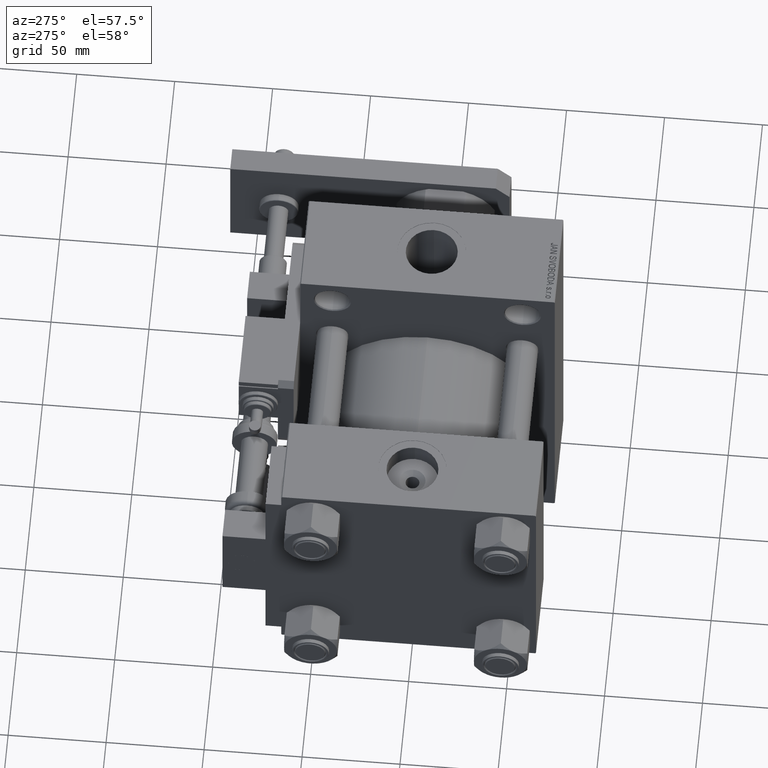
[diagram: clean part render]
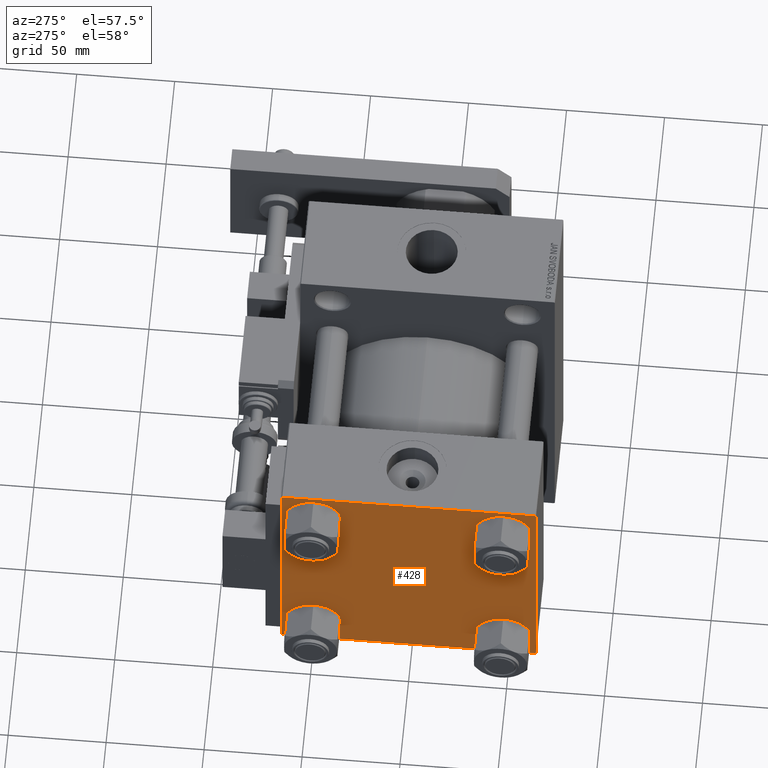
[diagram: same view with one face highlighted and labeled with its STEP entity id]
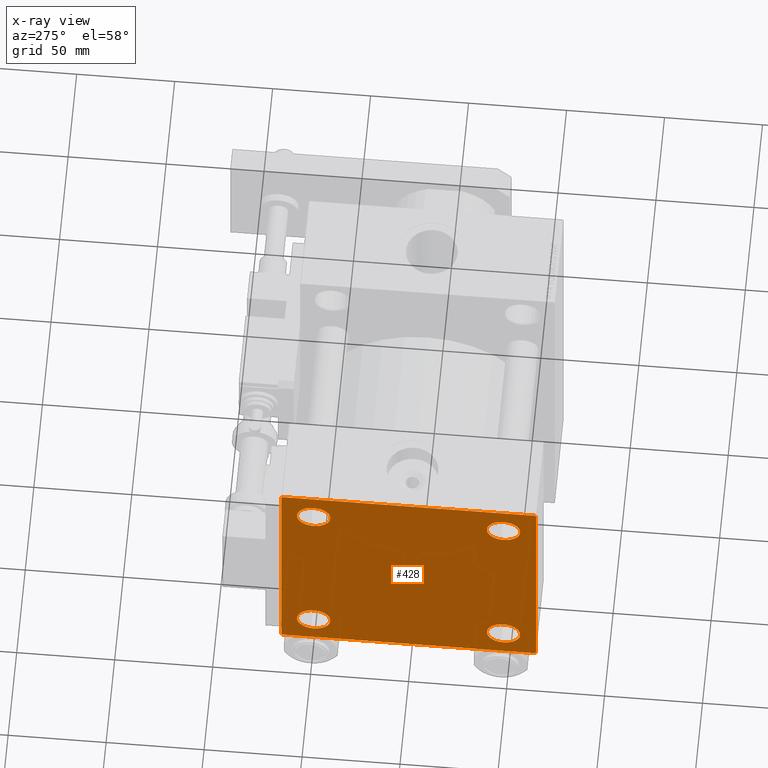
[diagram: x-ray of the same camera — body ghosted, the highlighted face saturated]
A machine part, auxiliary view. The second image highlights one B-rep face of the part: STEP entity #428.
The next image is the same camera in x-ray: the body ghosted, the highlighted face saturated — about 0% of this face is hidden behind the body in this view.
In plain terms, the highlighted planar face has unit normal (-1, 0, 0).
Its self-contained STEP definition (entity closure, byte-faithful):
#428 = ADVANCED_FACE ( 'NONE', ( #49504, #45190, #45452, #49236, #17027 ), #8641, .T. ) ;
#460 = CARTESIAN_POINT ( 'NONE',  ( 0.000000000000000000, -48.44999999999998153, -48.45000000000000995 ) ) ;
#1574 = DIRECTION ( 'NONE',  ( 1.000000000000000000, -0.000000000000000000, 0.000000000000000000 ) ) ;
#1979 = DIRECTION ( 'NONE',  ( 0.000000000000000000, 0.000000000000000000, 1.000000000000000000 ) ) ;
#2324 = VERTEX_POINT ( 'NONE', #41794 ) ;
#2343 = EDGE_CURVE ( 'NONE', #5148, #16392, #12272, .T. ) ;
#2450 = AXIS2_PLACEMENT_3D ( 'NONE', #7832, #24349, #40338 ) ;
#2791 = ORIENTED_EDGE ( 'NONE', *, *, #34305, .T. ) ;
#2982 = CIRCLE ( 'NONE', #37566, 8.500000000000007105 ) ;
#3937 = VERTEX_POINT ( 'NONE', #30090 ) ;
#3967 = ORIENTED_EDGE ( 'NONE', *, *, #13588, .T. ) ;
#4166 = ORIENTED_EDGE ( 'NONE', *, *, #31694, .T. ) ;
#4752 = ORIENTED_EDGE ( 'NONE', *, *, #44020, .T. ) ;
#5148 = VERTEX_POINT ( 'NONE', #52471 ) ;
#5261 = LINE ( 'NONE', #17696, #11044 ) ;
#5394 = EDGE_CURVE ( 'NONE', #10058, #19141, #46000, .T. ) ;
#5990 = LINE ( 'NONE', #10028, #34067 ) ;
#6223 = VECTOR ( 'NONE', #24830, 1000.000000000000114 ) ;
#6898 = DIRECTION ( 'NONE',  ( 1.000000000000000000, -0.000000000000000000, 0.000000000000000000 ) ) ;
#7463 = ORIENTED_EDGE ( 'NONE', *, *, #24101, .T. ) ;
#7832 = CARTESIAN_POINT ( 'NONE',  ( 0.000000000000000000, 48.44999999999999574, 48.44999999999999574 ) ) ;
#8641 = PLANE ( 'NONE',  #46380 ) ;
#9318 = AXIS2_PLACEMENT_3D ( 'NONE', #21919, #38448, #50060 ) ;
#9398 = CIRCLE ( 'NONE', #46564, 8.500000000000007105 ) ;
#9441 = DIRECTION ( 'NONE',  ( 0.000000000000000000, 0.000000000000000000, 1.000000000000000000 ) ) ;
#9726 = CARTESIAN_POINT ( 'NONE',  ( 0.000000000000000000, 65.00000000000000000, 64.49999999999998579 ) ) ;
#10028 = CARTESIAN_POINT ( 'NONE',  ( 0.000000000000000000, 64.74999999999998579, 64.74999999999998579 ) ) ;
#10058 = VERTEX_POINT ( 'NONE', #40704 ) ;
#10135 = VECTOR ( 'NONE', #53410, 1000.000000000000114 ) ;
#10451 = CIRCLE ( 'NONE', #11281, 8.500000000000007105 ) ;
#11044 = VECTOR ( 'NONE', #46920, 1000.000000000000000 ) ;
#11128 = CARTESIAN_POINT ( 'NONE',  ( 0.000000000000000000, -48.44999999999998153, -39.95000000000000284 ) ) ;
#11281 = AXIS2_PLACEMENT_3D ( 'NONE', #460, #12581, #42361 ) ;
#11555 = AXIS2_PLACEMENT_3D ( 'NONE', #47406, #51728, #1979 ) ;
#11744 = EDGE_LOOP ( 'NONE', ( #42857, #30120 ) ) ;
#12272 = LINE ( 'NONE', #37491, #10135 ) ;
#12320 = CIRCLE ( 'NONE', #15793, 8.500000000000007105 ) ;
#12581 = DIRECTION ( 'NONE',  ( 1.000000000000000000, -0.000000000000000000, 0.000000000000000000 ) ) ;
#13141 = DIRECTION ( 'NONE',  ( 0.000000000000000000, 0.000000000000000000, -1.000000000000000000 ) ) ;
#13467 = DIRECTION ( 'NONE',  ( 1.000000000000000000, -0.000000000000000000, 0.000000000000000000 ) ) ;
#13588 = EDGE_CURVE ( 'NONE', #18756, #27484, #32321, .T. ) ;
#13741 = DIRECTION ( 'NONE',  ( 0.000000000000000000, 0.000000000000000000, 1.000000000000000000 ) ) ;
#13789 = ORIENTED_EDGE ( 'NONE', *, *, #24720, .F. ) ;
#14455 = ORIENTED_EDGE ( 'NONE', *, *, #32169, .T. ) ;
#14710 = EDGE_CURVE ( 'NONE', #2324, #19654, #2982, .T. ) ;
#14997 = DIRECTION ( 'NONE',  ( 0.000000000000000000, 0.000000000000000000, 1.000000000000000000 ) ) ;
#15793 = AXIS2_PLACEMENT_3D ( 'NONE', #45723, #25960, #9441 ) ;
#16150 = LINE ( 'NONE', #45658, #6223 ) ;
#16392 = VERTEX_POINT ( 'NONE', #31061 ) ;
#17027 = FACE_OUTER_BOUND ( 'NONE', #29851, .T. ) ;
#17220 = CARTESIAN_POINT ( 'NONE',  ( 0.000000000000000000, -65.00000000000000000, 64.99999999999998579 ) ) ;
#17312 = DIRECTION ( 'NONE',  ( 0.000000000000000000, 0.000000000000000000, -1.000000000000000000 ) ) ;
#17471 = VERTEX_POINT ( 'NONE', #9726 ) ;
#17489 = LINE ( 'NONE', #17220, #32206 ) ;
#17696 = CARTESIAN_POINT ( 'NONE',  ( 0.000000000000000000, 65.00000000000000000, -64.99999999999998579 ) ) ;
#18318 = DIRECTION ( 'NONE',  ( 0.000000000000000000, 0.000000000000000000, 1.000000000000000000 ) ) ;
#18756 = VERTEX_POINT ( 'NONE', #50263 ) ;
#19141 = VERTEX_POINT ( 'NONE', #46675 ) ;
#19599 = VERTEX_POINT ( 'NONE', #51741 ) ;
#19654 = VERTEX_POINT ( 'NONE', #31451 ) ;
#21251 = CARTESIAN_POINT ( 'NONE',  ( -0.000000000000000000, -64.74999999999819522, 64.75000000000179057 ) ) ;
#21416 = CIRCLE ( 'NONE', #2450, 8.500000000000007105 ) ;
#21635 = VERTEX_POINT ( 'NONE', #24635 ) ;
#21919 = CARTESIAN_POINT ( 'NONE',  ( 0.000000000000000000, -48.44999999999998153, -48.45000000000000995 ) ) ;
#22486 = DIRECTION ( 'NONE',  ( 0.000000000000000000, 0.7071067811865474617, -0.7071067811865474617 ) ) ;
#22598 = EDGE_CURVE ( 'NONE', #33527, #21635, #49067, .T. ) ;
#23171 = EDGE_LOOP ( 'NONE', ( #48751, #2791 ) ) ;
#23393 = CARTESIAN_POINT ( 'NONE',  ( 0.000000000000000000, 48.44999999999999574, -48.44999999999999574 ) ) ;
#24101 = EDGE_CURVE ( 'NONE', #19654, #2324, #9398, .T. ) ;
#24349 = DIRECTION ( 'NONE',  ( 1.000000000000000000, -0.000000000000000000, 0.000000000000000000 ) ) ;
#24635 = CARTESIAN_POINT ( 'NONE',  ( 0.000000000000000000, -48.44999999999998153, -56.95000000000001705 ) ) ;
#24720 = EDGE_CURVE ( 'NONE', #39296, #32142, #26351, .T. ) ;
#24830 = DIRECTION ( 'NONE',  ( -0.000000000000000000, -0.7071067811865474617, -0.7071067811865474617 ) ) ;
#25078 = EDGE_CURVE ( 'NONE', #27484, #18756, #21416, .T. ) ;
#25374 = EDGE_CURVE ( 'NONE', #19599, #5148, #5261, .T. ) ;
#25453 = LINE ( 'NONE', #41959, #27609 ) ;
#25746 = VECTOR ( 'NONE', #26621, 1000.000000000000000 ) ;
#25940 = CARTESIAN_POINT ( 'NONE',  ( 0.000000000000000000, -48.44999999999998153, 48.45000000000000995 ) ) ;
#25960 = DIRECTION ( 'NONE',  ( 1.000000000000000000, -0.000000000000000000, 0.000000000000000000 ) ) ;
#26351 = LINE ( 'NONE', #35292, #25746 ) ;
#26621 = DIRECTION ( 'NONE',  ( 0.000000000000000000, -1.000000000000000000, -2.135044278125300850E-16 ) ) ;
#26674 = ORIENTED_EDGE ( 'NONE', *, *, #2343, .T. ) ;
#27011 = AXIS2_PLACEMENT_3D ( 'NONE', #23393, #6898, #14997 ) ;
#27484 = VERTEX_POINT ( 'NONE', #36822 ) ;
#27609 = VECTOR ( 'NONE', #17312, 1000.000000000000000 ) ;
#28026 = ORIENTED_EDGE ( 'NONE', *, *, #25374, .T. ) ;
#28413 = CARTESIAN_POINT ( 'NONE',  ( 0.000000000000000000, 0.000000000000000000, 0.000000000000000000 ) ) ;
#28837 = DIRECTION ( 'NONE',  ( -0.000000000000000000, 0.7071067811865672237, 0.7071067811865279218 ) ) ;
#29058 = ORIENTED_EDGE ( 'NONE', *, *, #14710, .T. ) ;
#29851 = EDGE_LOOP ( 'NONE', ( #4166, #51203, #28026, #26674, #52582, #14455, #13789, #4752 ) ) ;
#30090 = CARTESIAN_POINT ( 'NONE',  ( 0.000000000000000000, 65.00000000000000000, -64.49999999999995737 ) ) ;
#30120 = ORIENTED_EDGE ( 'NONE', *, *, #5394, .T. ) ;
#31061 = CARTESIAN_POINT ( 'NONE',  ( 0.000000000000000000, -65.00000000000000000, -64.49999999999995737 ) ) ;
#31451 = CARTESIAN_POINT ( 'NONE',  ( 0.000000000000000000, -48.44999999999998153, 39.95000000000000284 ) ) ;
#31694 = EDGE_CURVE ( 'NONE', #17471, #3937, #25453, .T. ) ;
#31973 = VECTOR ( 'NONE', #28837, 1000.000000000000000 ) ;
#32142 = VERTEX_POINT ( 'NONE', #33978 ) ;
#32169 = EDGE_CURVE ( 'NONE', #33680, #32142, #50199, .T. ) ;
#32206 = VECTOR ( 'NONE', #13141, 1000.000000000000000 ) ;
#32321 = CIRCLE ( 'NONE', #11555, 8.500000000000007105 ) ;
#33527 = VERTEX_POINT ( 'NONE', #11128 ) ;
#33554 = DIRECTION ( 'NONE',  ( -0.000000000000000000, 0.000000000000000000, 1.000000000000000000 ) ) ;
#33680 = VERTEX_POINT ( 'NONE', #45228 ) ;
#33978 = CARTESIAN_POINT ( 'NONE',  ( 0.000000000000000000, -64.49999999999997158, 64.99999999999998579 ) ) ;
#34067 = VECTOR ( 'NONE', #22486, 1000.000000000000114 ) ;
#34305 = EDGE_CURVE ( 'NONE', #21635, #33527, #10451, .T. ) ;
#35292 = CARTESIAN_POINT ( 'NONE',  ( 0.000000000000000000, 65.00000000000000000, 65.00000000000001421 ) ) ;
#36822 = CARTESIAN_POINT ( 'NONE',  ( 0.000000000000000000, 48.44999999999999574, 56.95000000000000284 ) ) ;
#37491 = CARTESIAN_POINT ( 'NONE',  ( 0.000000000000000000, -64.74999999999997158, -64.74999999999997158 ) ) ;
#37566 = AXIS2_PLACEMENT_3D ( 'NONE', #50792, #1574, #18318 ) ;
#38448 = DIRECTION ( 'NONE',  ( 1.000000000000000000, -0.000000000000000000, 0.000000000000000000 ) ) ;
#39296 = VERTEX_POINT ( 'NONE', #45193 ) ;
#39392 = ORIENTED_EDGE ( 'NONE', *, *, #25078, .T. ) ;
#39587 = EDGE_CURVE ( 'NONE', #3937, #19599, #16150, .T. ) ;
#40338 = DIRECTION ( 'NONE',  ( 0.000000000000000000, 0.000000000000000000, 1.000000000000000000 ) ) ;
#40704 = CARTESIAN_POINT ( 'NONE',  ( 0.000000000000000000, 48.44999999999999574, -56.95000000000000284 ) ) ;
#41230 = EDGE_CURVE ( 'NONE', #33680, #16392, #17489, .T. ) ;
#41794 = CARTESIAN_POINT ( 'NONE',  ( 0.000000000000000000, -48.44999999999998153, 56.95000000000001705 ) ) ;
#41959 = CARTESIAN_POINT ( 'NONE',  ( 0.000000000000000000, 65.00000000000000000, 65.00000000000001421 ) ) ;
#42008 = EDGE_CURVE ( 'NONE', #19141, #10058, #12320, .T. ) ;
#42361 = DIRECTION ( 'NONE',  ( 0.000000000000000000, 0.000000000000000000, 1.000000000000000000 ) ) ;
#42857 = ORIENTED_EDGE ( 'NONE', *, *, #42008, .T. ) ;
#44020 = EDGE_CURVE ( 'NONE', #39296, #17471, #5990, .T. ) ;
#45190 = FACE_BOUND ( 'NONE', #23171, .T. ) ;
#45193 = CARTESIAN_POINT ( 'NONE',  ( 0.000000000000000000, 64.49999999999997158, 65.00000000000001421 ) ) ;
#45228 = CARTESIAN_POINT ( 'NONE',  ( 0.000000000000000000, -65.00000000000000000, 64.49999999999998579 ) ) ;
#45452 = FACE_BOUND ( 'NONE', #11744, .T. ) ;
#45658 = CARTESIAN_POINT ( 'NONE',  ( 0.000000000000000000, 64.74999999999997158, -64.74999999999997158 ) ) ;
#45723 = CARTESIAN_POINT ( 'NONE',  ( 0.000000000000000000, 48.44999999999999574, -48.44999999999999574 ) ) ;
#46000 = CIRCLE ( 'NONE', #27011, 8.500000000000007105 ) ;
#46380 = AXIS2_PLACEMENT_3D ( 'NONE', #28413, #49774, #33554 ) ;
#46564 = AXIS2_PLACEMENT_3D ( 'NONE', #25940, #13467, #13741 ) ;
#46675 = CARTESIAN_POINT ( 'NONE',  ( 0.000000000000000000, 48.44999999999999574, -39.94999999999998863 ) ) ;
#46920 = DIRECTION ( 'NONE',  ( 0.000000000000000000, -1.000000000000000000, -2.135044278125300850E-16 ) ) ;
#47183 = EDGE_LOOP ( 'NONE', ( #39392, #3967 ) ) ;
#47406 = CARTESIAN_POINT ( 'NONE',  ( 0.000000000000000000, 48.44999999999999574, 48.44999999999999574 ) ) ;
#47510 = EDGE_LOOP ( 'NONE', ( #29058, #7463 ) ) ;
#48751 = ORIENTED_EDGE ( 'NONE', *, *, #22598, .T. ) ;
#49067 = CIRCLE ( 'NONE', #9318, 8.500000000000007105 ) ;
#49236 = FACE_BOUND ( 'NONE', #47183, .T. ) ;
#49504 = FACE_BOUND ( 'NONE', #47510, .T. ) ;
#49774 = DIRECTION ( 'NONE',  ( -1.000000000000000000, 0.000000000000000000, -0.000000000000000000 ) ) ;
#50060 = DIRECTION ( 'NONE',  ( 0.000000000000000000, 0.000000000000000000, 1.000000000000000000 ) ) ;
#50199 = LINE ( 'NONE', #21251, #31973 ) ;
#50263 = CARTESIAN_POINT ( 'NONE',  ( 0.000000000000000000, 48.44999999999999574, 39.94999999999998863 ) ) ;
#50792 = CARTESIAN_POINT ( 'NONE',  ( 0.000000000000000000, -48.44999999999998153, 48.45000000000000995 ) ) ;
#51203 = ORIENTED_EDGE ( 'NONE', *, *, #39587, .T. ) ;
#51728 = DIRECTION ( 'NONE',  ( 1.000000000000000000, -0.000000000000000000, 0.000000000000000000 ) ) ;
#51741 = CARTESIAN_POINT ( 'NONE',  ( 0.000000000000000000, 64.49999999999997158, -64.99999999999998579 ) ) ;
#52471 = CARTESIAN_POINT ( 'NONE',  ( 0.000000000000000000, -64.49999999999994316, -65.00000000000001421 ) ) ;
#52582 = ORIENTED_EDGE ( 'NONE', *, *, #41230, .F. ) ;
#53410 = DIRECTION ( 'NONE',  ( 0.000000000000000000, -0.7071067811865474617, 0.7071067811865474617 ) ) ;